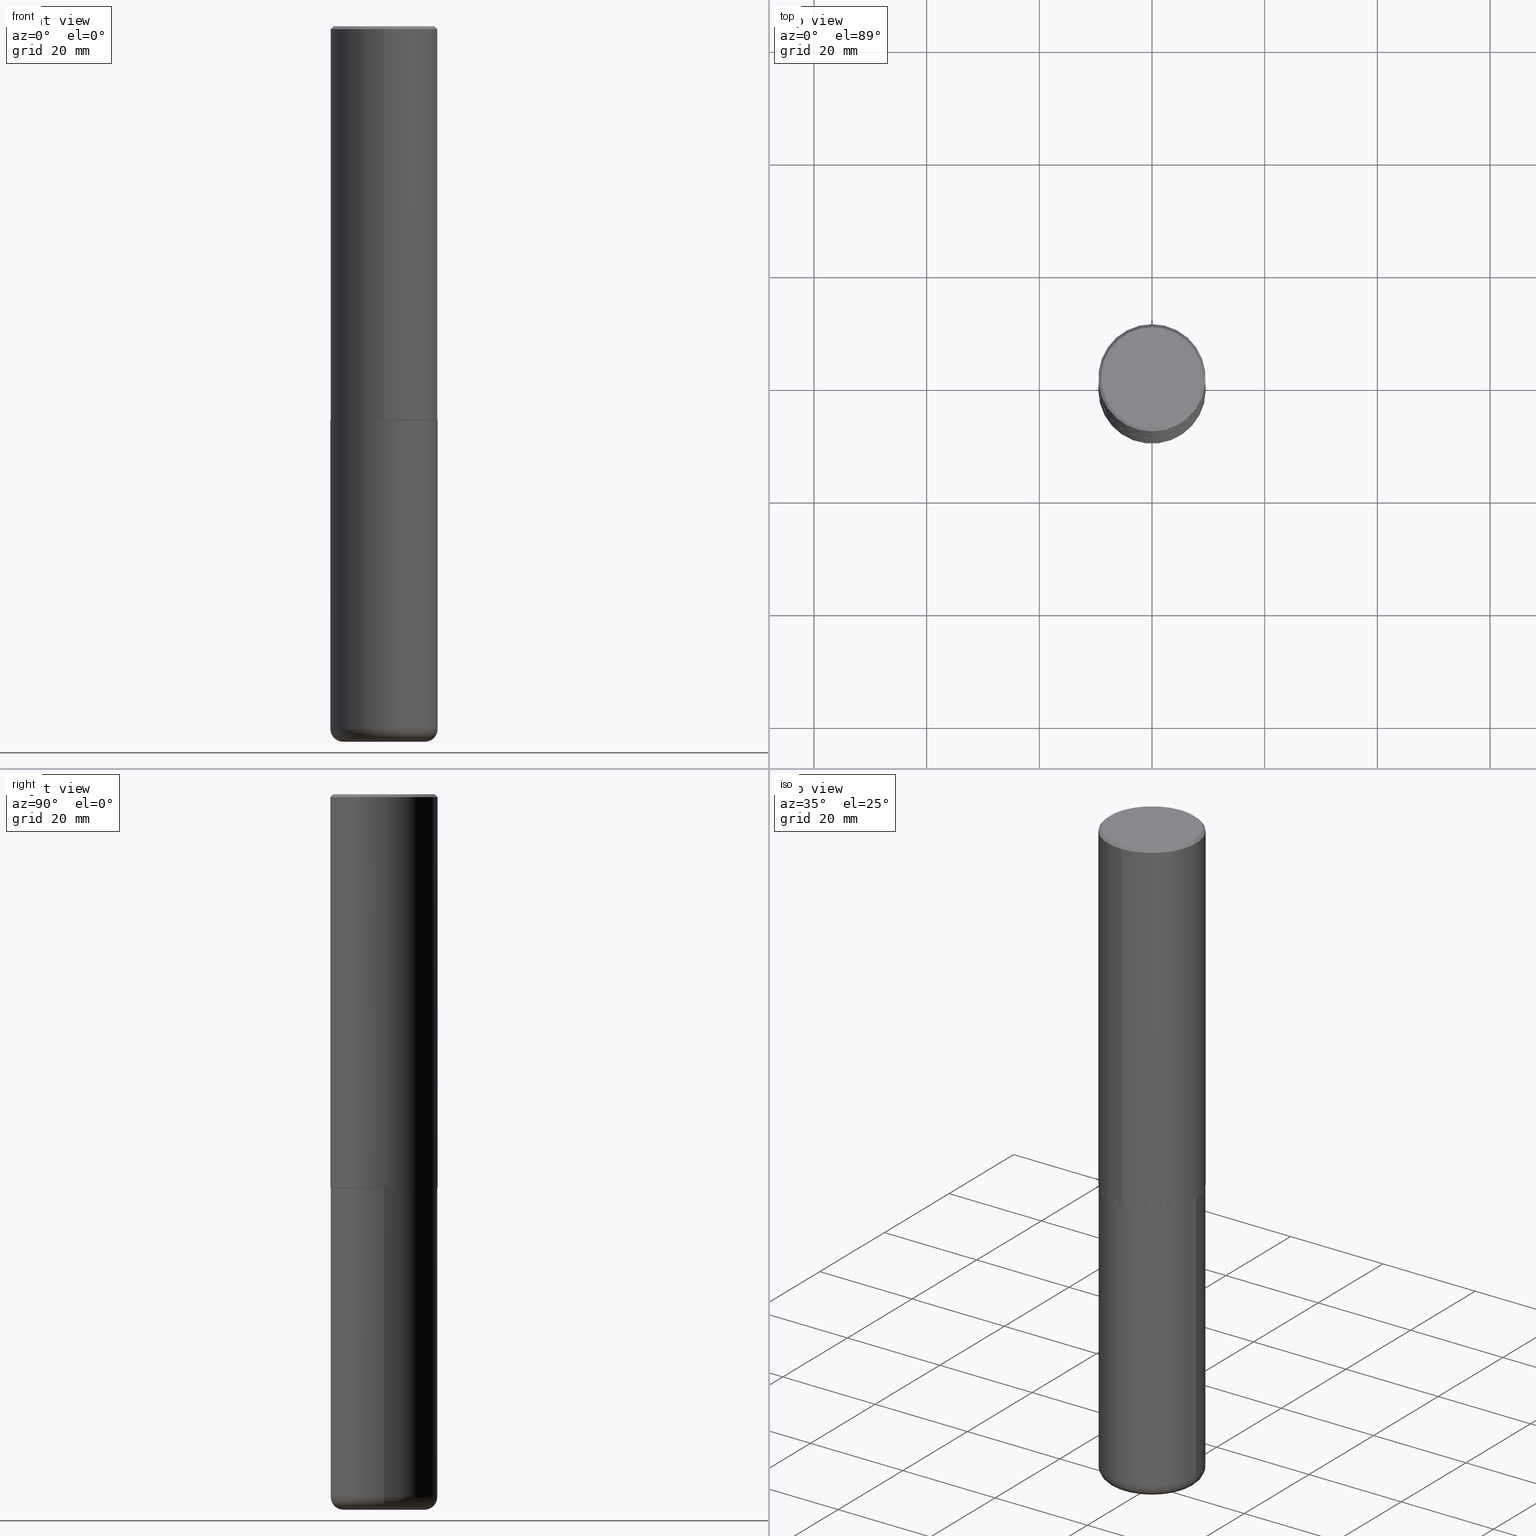
[diagram: canonical four-view strip — front | top / right | iso, engineering-drawing reading convention]
A machine part, canonical four-view strip (front | top / right | iso — engineering-drawing reading convention). The complete STEP part file that produces these views, byte-faithful:
ISO-10303-21;
HEADER;
FILE_DESCRIPTION (( 'STEP AP203' ),
    '1' );
FILE_NAME ('37659.STEP',
    '2024-03-02T07:17:27',
    ( '' ),
    ( '' ),
    'SwSTEP 2.0',
    'SolidWorks 2023',
    '' );
FILE_SCHEMA (( 'CONFIG_CONTROL_DESIGN' ));
ENDSEC;

DATA;
#1 = ORIENTED_EDGE ( 'NONE', *, *, #99, .F. ) ;
#2 = PERSON_AND_ORGANIZATION ( #376, #281 ) ;
#3 = VECTOR ( 'NONE', #256, 39.37007874015748143 ) ;
#4 = DATE_AND_TIME ( #245, #71 ) ;
#5 = EDGE_LOOP ( 'NONE', ( #367, #202, #193, #274 ) ) ;
#6 =( LENGTH_UNIT ( ) NAMED_UNIT ( * ) SI_UNIT ( $, .METRE. ) );
#7 = EDGE_LOOP ( 'NONE', ( #57, #90, #310, #207 ) ) ;
#8 = CARTESIAN_POINT ( 'NONE',  ( -0.3750000000000000555, -1.070783826866887333E-14, -2.750000000000000000 ) ) ;
#9 = DIRECTION ( 'NONE',  ( -2.445468806185136597E-29, 3.491481338843145583E-15, 1.000000000000000000 ) ) ;
#10 = DIRECTION ( 'NONE',  ( -6.982962677686266711E-15, -1.000000000000000000, 3.490662795793665951E-15 ) ) ;
#11 = AXIS2_PLACEMENT_3D ( 'NONE', #147, #110, #253 ) ;
#12 = PRODUCT_DEFINITION_SHAPE ( 'NONE', 'NONE',  #415 ) ;
#13 = DIRECTION ( 'NONE',  ( -2.446040391741596606E-29, 3.490662795793665557E-15, 1.000000000000000000 ) ) ;
#14 =( NAMED_UNIT ( * ) SI_UNIT ( $, .STERADIAN. ) SOLID_ANGLE_UNIT ( ) );
#15 = DIRECTION ( 'NONE',  ( -2.445468806185136597E-29, 3.491481338843145583E-15, 1.000000000000000000 ) ) ;
#16 = CIRCLE ( 'NONE', #349, 0.3549999999999999822 ) ;
#17 = CARTESIAN_POINT ( 'NONE',  ( 2.618611004132350411E-15, 0.3749999999999999445, -0.02000000000000139513 ) ) ;
#18 = ADVANCED_FACE ( 'NONE', ( #292 ), #116, .T. ) ;
#19 = LOCAL_TIME ( 2, 17, 27.00000000000000000, #46 ) ;
#20 = ADVANCED_FACE ( 'NONE', ( #385 ), #270, .T. ) ;
#21 = PLANE ( 'NONE',  #70 ) ;
#22 = DIRECTION ( 'NONE',  ( 2.438088387897960049E-29, -3.491481338843145188E-15, -1.000000000000000000 ) ) ;
#23 = ORIENTED_EDGE ( 'NONE', *, *, #266, .T. ) ;
#24 = ORIENTED_EDGE ( 'NONE', *, *, #124, .T. ) ;
#25 = FACE_OUTER_BOUND ( 'NONE', #205, .T. ) ;
#26 = CALENDAR_DATE ( 2024, 2, 3 ) ;
#27 = ORIENTED_EDGE ( 'NONE', *, *, #386, .F. ) ;
#28 = LINE ( 'NONE', #239, #114 ) ;
#29 = ORIENTED_EDGE ( 'NONE', *, *, #402, .T. ) ;
#30 = DIRECTION ( 'NONE',  ( -2.446040391741596606E-29, 3.490662795793665557E-15, 1.000000000000000000 ) ) ;
#31 = CONICAL_SURFACE ( 'NONE', #312, 0.3750000000000000555, 0.7853981633974465026 ) ;
#32 = PERSON_AND_ORGANIZATION ( #376, #281 ) ;
#33 = DIRECTION ( 'NONE',  ( -2.446040391741596606E-29, 3.490662795793665557E-15, 1.000000000000000000 ) ) ;
#34 = ORIENTED_EDGE ( 'NONE', *, *, #294, .F. ) ;
#35 = CARTESIAN_POINT ( 'NONE',  ( 6.726611077289389265E-29, -9.599322688432580971E-15, -2.750000000000000000 ) ) ;
#36 = PERSON_AND_ORGANIZATION_ROLE ( 'design_supplier' ) ;
#37 = ORIENTED_EDGE ( 'NONE', *, *, #124, .F. ) ;
#38 = ADVANCED_FACE ( 'NONE', ( #25 ), #31, .T. ) ;
#39 = PRODUCT_RELATED_PRODUCT_CATEGORY ( 'detail', '', ( #78 ) ) ;
#40 = LINE ( 'NONE', #248, #86 ) ;
#41 = AXIS2_PLACEMENT_3D ( 'NONE', #183, #115, #255 ) ;
#42 = AXIS2_PLACEMENT_3D ( 'NONE', #130, #175, #69 ) ;
#43 = DIRECTION ( 'NONE',  ( -6.982962677686265922E-15, -1.000000000000000000, 3.490662795793665557E-15 ) ) ;
#44 = CC_DESIGN_PERSON_AND_ORGANIZATION_ASSIGNMENT ( #32, #195, ( #258 ) ) ;
#45 = CARTESIAN_POINT ( 'NONE',  ( 1.222734403092568523E-28, -1.745740669421572989E-14, -5.000000000000000000 ) ) ;
#46 = COORDINATED_UNIVERSAL_TIME_OFFSET ( 5, 0, .BEHIND. ) ;
#47 = CIRCLE ( 'NONE', #302, 0.3750000000000000555 ) ;
#48 = CC_DESIGN_APPROVAL ( #321, ( #317 ) ) ;
#49 = DIRECTION ( 'NONE',  ( 2.446040391741596606E-29, -3.490662795793665557E-15, -1.000000000000000000 ) ) ;
#50 = ADVANCED_FACE ( 'NONE', ( #282 ), #416, .T. ) ;
#51 = DIRECTION ( 'NONE',  ( -4.851104656540954809E-15, -0.7071067811865486830, -0.7071067811865463515 ) ) ;
#52 = EDGE_CURVE ( 'NONE', #260, #225, #54, .T. ) ;
#53 = CARTESIAN_POINT ( 'NONE',  ( 6.726611077289389265E-29, -9.599322688432580971E-15, -2.750000000000000000 ) ) ;
#54 = CIRCLE ( 'NONE', #152, 0.2850000000000000311 ) ;
#55 = CIRCLE ( 'NONE', #291, 0.3749999999999999445 ) ;
#56 = EDGE_CURVE ( 'NONE', #396, #125, #47, .T. ) ;
#57 = ORIENTED_EDGE ( 'NONE', *, *, #348, .T. ) ;
#58 = DIRECTION ( 'NONE',  ( 2.438088387897960049E-29, -3.491481338843145188E-15, -1.000000000000000000 ) ) ;
#59 = LINE ( 'NONE', #158, #3 ) ;
#60 = ORIENTED_EDGE ( 'NONE', *, *, #293, .F. ) ;
#61 = CARTESIAN_POINT ( 'NONE',  ( 1.200725183836902132E-28, -1.714317337371984662E-14, -4.910000000000000142 ) ) ;
#62 = VECTOR ( 'NONE', #106, 39.37007874015748143 ) ;
#63 = CONICAL_SURFACE ( 'NONE', #87, 0.3739999999999999991, 0.7853981633977213939 ) ;
#64 = EDGE_LOOP ( 'NONE', ( #355, #393, #75, #1 ) ) ;
#65 = PERSON_AND_ORGANIZATION ( #376, #281 ) ;
#66 = ORIENTED_EDGE ( 'NONE', *, *, #99, .T. ) ;
#67 = CYLINDRICAL_SURFACE ( 'NONE', #354, 0.3749999999999999445 ) ;
#68 = EDGE_LOOP ( 'NONE', ( #129, #304 ) ) ;
#69 = DIRECTION ( 'NONE',  ( -6.982962677686266711E-15, -1.000000000000000000, 3.490662795793665951E-15 ) ) ;
#70 = AXIS2_PLACEMENT_3D ( 'NONE', #414, #226, #151 ) ;
#71 = LOCAL_TIME ( 2, 17, 27.00000000000000000, #389 ) ;
#72 = ORIENTED_EDGE ( 'NONE', *, *, #386, .T. ) ;
#73 = DIRECTION ( 'NONE',  ( -2.445468806185136597E-29, 3.491481338843145583E-15, 1.000000000000000000 ) ) ;
#74 = APPROVAL_ROLE ( '' ) ;
#75 = ORIENTED_EDGE ( 'NONE', *, *, #85, .T. ) ;
#76 = DIRECTION ( 'NONE',  ( -2.446040391741596606E-29, 3.490662795793665557E-15, 1.000000000000000000 ) ) ;
#77 = EDGE_CURVE ( 'NONE', #260, #403, #88, .T. ) ;
#78 = PRODUCT ( '37659', '37659', '', ( #179 ) ) ;
#79 = AXIS2_PLACEMENT_3D ( 'NONE', #276, #345, #43 ) ;
#80 = VECTOR ( 'NONE', #150, 39.37007874015748143 ) ;
#81 = DIRECTION ( 'NONE',  ( -6.982962677686265922E-15, -1.000000000000000000, 3.494488891895536035E-15 ) ) ;
#82 = DIRECTION ( 'NONE',  ( 7.105427357601001859E-15, 1.000000000000000000, -3.491481338843145583E-15 ) ) ;
#83 = DIRECTION ( 'NONE',  ( 4.937700262164538576E-15, 0.7071067811865437980, -0.7071067811865512365 ) ) ;
#84 = CARTESIAN_POINT ( 'NONE',  ( 1.200725183836902132E-28, -1.714317337371984662E-14, -4.910000000000000142 ) ) ;
#85 = EDGE_CURVE ( 'NONE', #225, #98, #328, .T. ) ;
#86 = VECTOR ( 'NONE', #174, 39.37007874015748143 ) ;
#87 = AXIS2_PLACEMENT_3D ( 'NONE', #35, #30, #359 ) ;
#88 = CIRCLE ( 'NONE', #257, 0.08999999999999992728 ) ;
#89 = CIRCLE ( 'NONE', #343, 0.3750000000000000555 ) ;
#90 = ORIENTED_EDGE ( 'NONE', *, *, #133, .T. ) ;
#91 = CARTESIAN_POINT ( 'NONE',  ( 2.478951750578624209E-15, 0.3549999999999999822, -1.215853765202481601E-15 ) ) ;
#92 = EDGE_CURVE ( 'NONE', #140, #190, #374, .T. ) ;
#93 = DIRECTION ( 'NONE',  ( -4.937700262165896205E-15, -0.7071067811867381980, 0.7071067811863568364 ) ) ;
#94 = AXIS2_PLACEMENT_3D ( 'NONE', #342, #76, #10 ) ;
#95 = VERTEX_POINT ( 'NONE', #377 ) ;
#96 = FACE_OUTER_BOUND ( 'NONE', #5, .T. ) ;
#97 = COORDINATED_UNIVERSAL_TIME_OFFSET ( 5, 0, .BEHIND. ) ;
#98 = VERTEX_POINT ( 'NONE', #178 ) ;
#99 = EDGE_CURVE ( 'NONE', #403, #98, #228, .T. ) ;
#100 = DATE_TIME_ROLE ( 'creation_date' ) ;
#101 = VERTEX_POINT ( 'NONE', #139 ) ;
#102 = CARTESIAN_POINT ( 'NONE',  ( 6.726611077289389265E-29, -9.599322688432580971E-15, -2.750000000000000000 ) ) ;
#103 = ORIENTED_EDGE ( 'NONE', *, *, #153, .F. ) ;
#104 = CALENDAR_DATE ( 2024, 2, 3 ) ;
#105 = EDGE_LOOP ( 'NONE', ( #122, #23, #219, #60 ) ) ;
#106 = DIRECTION ( 'NONE',  ( -2.446040391741596606E-29, 3.490662795793665557E-15, 1.000000000000000000 ) ) ;
#107 = CARTESIAN_POINT ( 'NONE',  ( 4.892080783483214581E-31, -6.981325591587361238E-17, -0.02000000000000008715 ) ) ;
#108 = MANIFOLD_SOLID_BREP ( 'Body-Move/Copy2[2]', #280 ) ;
#109 = DIRECTION ( 'NONE',  ( -6.982962677686266711E-15, -1.000000000000000000, 3.491481338843145583E-15 ) ) ;
#110 = DIRECTION ( 'NONE',  ( -2.445468806185136597E-29, 3.491481338843145583E-15, 1.000000000000000000 ) ) ;
#111 = CARTESIAN_POINT ( 'NONE',  ( 1.200725183836902132E-28, -1.714317337371984662E-14, -4.910000000000000142 ) ) ;
#112 = CC_DESIGN_PERSON_AND_ORGANIZATION_ASSIGNMENT ( #309, #36, ( #258 ) ) ;
#113 = CIRCLE ( 'NONE', #41, 0.3739999999999999991 ) ;
#114 = VECTOR ( 'NONE', #93, 39.37007874015748143 ) ;
#115 = DIRECTION ( 'NONE',  ( -2.446040391741596606E-29, 3.490662795793665557E-15, 1.000000000000000000 ) ) ;
#116 = PLANE ( 'NONE',  #186 ) ;
#117 = APPROVAL ( #217, 'UNSPECIFIED' ) ;
#118 = FACE_OUTER_BOUND ( 'NONE', #301, .T. ) ;
#119 = AXIS2_PLACEMENT_3D ( 'NONE', #91, #146, #412 ) ;
#120 = LOCAL_TIME ( 2, 17, 27.00000000000000000, #230 ) ;
#121 = DIRECTION ( 'NONE',  ( -1.000000000000000000, 6.982962677686265922E-15, -4.876176775795935793E-29 ) ) ;
#122 = ORIENTED_EDGE ( 'NONE', *, *, #131, .F. ) ;
#123 = UNCERTAINTY_MEASURE_WITH_UNIT (LENGTH_MEASURE( 1.000000000000000082E-05 ), #206, 'distance_accuracy_value', 'NONE');
#124 = EDGE_CURVE ( 'NONE', #403, #396, #368, .T. ) ;
#125 = VERTEX_POINT ( 'NONE', #401 ) ;
#126 = CARTESIAN_POINT ( 'NONE',  ( -2.618611004132284935E-15, -0.3750000000000099920, -2.748999999999999222 ) ) ;
#127 = DIRECTION ( 'NONE',  ( -2.445468806185136597E-29, 3.491481338843145583E-15, 1.000000000000000000 ) ) ;
#128 = DATE_TIME_ROLE ( 'classification_date' ) ;
#129 = ORIENTED_EDGE ( 'NONE', *, *, #216, .F. ) ;
#130 = CARTESIAN_POINT ( 'NONE',  ( 0.000000000000000000, 0.000000000000000000, 0.000000000000000000 ) ) ;
#131 = EDGE_CURVE ( 'NONE', #265, #190, #277, .T. ) ;
#132 = ORIENTED_EDGE ( 'NONE', *, *, #406, .F. ) ;
#133 = EDGE_CURVE ( 'NONE', #95, #265, #40, .T. ) ;
#134 = CARTESIAN_POINT ( 'NONE',  ( 2.664535259100411196E-15, 0.3749999999999907296, -2.749000000000000998 ) ) ;
#135 = ORIENTED_EDGE ( 'NONE', *, *, #173, .T. ) ;
#136 = DIRECTION ( 'NONE',  ( 1.000000000000000000, -6.982962677686266711E-15, 4.876176775795935793E-29 ) ) ;
#137 = APPLICATION_CONTEXT ( 'configuration controlled 3d designs of mechanical parts and assemblies' ) ;
#138 = CIRCLE ( 'NONE', #383, 0.3750000000000000555 ) ;
#139 = CARTESIAN_POINT ( 'NONE',  ( -2.572686749164323547E-15, -0.3750000000000001110, -0.01999999999999877570 ) ) ;
#140 = VERTEX_POINT ( 'NONE', #373 ) ;
#141 = DIRECTION ( 'NONE',  ( -2.445468806185136597E-29, 3.491481338843145583E-15, 1.000000000000000000 ) ) ;
#142 = DIRECTION ( 'NONE',  ( -6.982962677686265922E-15, -1.000000000000000000, 3.494488891895536035E-15 ) ) ;
#143 = DIRECTION ( 'NONE',  ( -2.445468806185136877E-29, 3.491481338843145188E-15, 1.000000000000000000 ) ) ;
#144 = PERSON_AND_ORGANIZATION ( #376, #281 ) ;
#145 = CIRCLE ( 'NONE', #163, 0.3739999999999999991 ) ;
#146 = DIRECTION ( 'NONE',  ( 2.446040391741596045E-29, -3.490662795793665557E-15, -1.000000000000000000 ) ) ;
#147 = CARTESIAN_POINT ( 'NONE',  ( 1.222734403092568523E-28, -1.745740669421572989E-14, -5.000000000000000000 ) ) ;
#148 = AXIS2_PLACEMENT_3D ( 'NONE', #53, #184, #323 ) ;
#149 = EDGE_LOOP ( 'NONE', ( #340, #160, #391, #171 ) ) ;
#150 = DIRECTION ( 'NONE',  ( -2.446040391741596606E-29, 3.490662795793665557E-15, 1.000000000000000000 ) ) ;
#151 = DIRECTION ( 'NONE',  ( -6.982962677686265922E-15, -1.000000000000000000, 3.490662795793665557E-15 ) ) ;
#152 = AXIS2_PLACEMENT_3D ( 'NONE', #45, #308, #181 ) ;
#153 = EDGE_CURVE ( 'NONE', #101, #190, #138, .T. ) ;
#154 = DATE_AND_TIME ( #285, #19 ) ;
#155 = DIRECTION ( 'NONE',  ( 1.000000000000000000, -6.982962677686269077E-15, 4.883557194083113462E-29 ) ) ;
#156 = DATE_AND_TIME ( #104, #417 ) ;
#157 = EDGE_LOOP ( 'NONE', ( #287, #24, #27, #196 ) ) ;
#158 = CARTESIAN_POINT ( 'NONE',  ( 0.3749999999999999445, -2.618611004132349622E-15, 1.828566290923475642E-29 ) ) ;
#159 = PERSON_AND_ORGANIZATION_ROLE ( 'classification_officer' ) ;
#160 = ORIENTED_EDGE ( 'NONE', *, *, #201, .T. ) ;
#161 = DIRECTION ( 'NONE',  ( 1.000000000000000000, -6.982962677686266711E-15, 4.876176775795935793E-29 ) ) ;
#162 = CARTESIAN_POINT ( 'NONE',  ( 6.724165036897648492E-29, -9.595832025636787455E-15, -2.749000000000000110 ) ) ;
#163 = AXIS2_PLACEMENT_3D ( 'NONE', #102, #311, #332 ) ;
#164 = ORIENTED_EDGE ( 'NONE', *, *, #85, .F. ) ;
#165 = CARTESIAN_POINT ( 'NONE',  ( -0.3749999999999999445, -1.447863811461947092E-14, -4.910000000000000142 ) ) ;
#166 = CC_DESIGN_DATE_AND_TIME_ASSIGNMENT ( #198, #128, ( #317 ) ) ;
#167 = DIRECTION ( 'NONE',  ( -2.446040391741596606E-29, 3.490662795793665557E-15, 1.000000000000000000 ) ) ;
#168 = APPROVAL_STATUS ( 'not_yet_approved' ) ;
#169 = ORIENTED_EDGE ( 'NONE', *, *, #216, .T. ) ;
#170 = CYLINDRICAL_SURFACE ( 'NONE', #94, 0.3750000000000002220 ) ;
#171 = ORIENTED_EDGE ( 'NONE', *, *, #92, .F. ) ;
#172 = DIRECTION ( 'NONE',  ( 1.000000000000000000, -6.982962677686269077E-15, 0.000000000000000000 ) ) ;
#173 = EDGE_CURVE ( 'NONE', #189, #140, #290, .T. ) ;
#174 = DIRECTION ( 'NONE',  ( 5.024295867789434219E-15, 0.7071067811867430830, 0.7071067811863519514 ) ) ;
#175 = DIRECTION ( 'NONE',  ( -2.446040391741596606E-29, 3.490662795793665557E-15, 1.000000000000000000 ) ) ;
#176 = DIRECTION ( 'NONE',  ( 1.000000000000000000, -6.982962677686269077E-15, 4.883557194083113462E-29 ) ) ;
#177 = APPROVAL ( #303, 'UNSPECIFIED' ) ;
#178 = CARTESIAN_POINT ( 'NONE',  ( 0.3749999999999999445, -1.976178437785219664E-14, -4.910000000000000142 ) ) ;
#179 = MECHANICAL_CONTEXT ( 'NONE', #320, 'mechanical' ) ;
#180 = ADVANCED_FACE ( 'NONE', ( #382 ), #288, .F. ) ;
#181 = DIRECTION ( 'NONE',  ( 1.000000000000000000, -6.982962677686266711E-15, 0.000000000000000000 ) ) ;
#182 = APPROVAL_PERSON_ORGANIZATION ( #2, #177, #366 ) ;
#183 = CARTESIAN_POINT ( 'NONE',  ( 6.726611077289389265E-29, -9.599322688432580971E-15, -2.750000000000000000 ) ) ;
#184 = DIRECTION ( 'NONE',  ( -2.446040391741596606E-29, 3.490662795793665557E-15, 1.000000000000000000 ) ) ;
#185 = ADVANCED_BREP_SHAPE_REPRESENTATION ( '37659', ( #405, #108, #240 ), #390 ) ;
#186 = AXIS2_PLACEMENT_3D ( 'NONE', #326, #22, #297 ) ;
#187 = CC_DESIGN_PERSON_AND_ORGANIZATION_ASSIGNMENT ( #144, #283, ( #78 ) ) ;
#188 = CARTESIAN_POINT ( 'NONE',  ( -2.572686749164323547E-15, -0.3750000000000001110, -0.01999999999999877570 ) ) ;
#189 = VERTEX_POINT ( 'NONE', #224 ) ;
#190 = VERTEX_POINT ( 'NONE', #17 ) ;
#191 = ADVANCED_FACE ( 'NONE', ( #322 ), #21, .F. ) ;
#192 = CARTESIAN_POINT ( 'NONE',  ( 4.892080783483214581E-31, -6.981325591587361238E-17, -0.02000000000000008715 ) ) ;
#193 = ORIENTED_EDGE ( 'NONE', *, *, #279, .T. ) ;
#194 = CIRCLE ( 'NONE', #11, 0.2850000000000000311 ) ;
#195 = PERSON_AND_ORGANIZATION_ROLE ( 'creator' ) ;
#196 = ORIENTED_EDGE ( 'NONE', *, *, #319, .F. ) ;
#197 = CARTESIAN_POINT ( 'NONE',  ( -2.618611004132351594E-15, -0.3750000000000002220, 1.308998548422625521E-15 ) ) ;
#198 = DATE_AND_TIME ( #26, #120 ) ;
#199 = EDGE_LOOP ( 'NONE', ( #72, #268 ) ) ;
#200 = CARTESIAN_POINT ( 'NONE',  ( -1.141397163745304909E-45, 1.628849886601155835E-31, 4.666305460853910467E-17 ) ) ;
#201 = EDGE_CURVE ( 'NONE', #189, #101, #227, .T. ) ;
#202 = ORIENTED_EDGE ( 'NONE', *, *, #242, .T. ) ;
#203 = DIRECTION ( 'NONE',  ( -2.446040391741596606E-29, 3.490662795793665557E-15, 1.000000000000000000 ) ) ;
#204 = CIRCLE ( 'NONE', #325, 0.3750000000000003886 ) ;
#205 = EDGE_LOOP ( 'NONE', ( #243, #327, #331, #362 ) ) ;
#206 =( CONVERSION_BASED_UNIT ( 'INCH', #237 ) LENGTH_UNIT ( ) NAMED_UNIT ( #360 ) );
#207 = ORIENTED_EDGE ( 'NONE', *, *, #279, .F. ) ;
#208 = DIRECTION ( 'NONE',  ( -6.982962677686265922E-15, -1.000000000000000000, 2.913971193241877611E-15 ) ) ;
#209 = ADVANCED_FACE ( 'NONE', ( #118 ), #259, .F. ) ;
#210 = DIRECTION ( 'NONE',  ( -1.000000000000000000, 7.105427357600996337E-15, 0.000000000000000000 ) ) ;
#211 = FACE_OUTER_BOUND ( 'NONE', #105, .T. ) ;
#212 = AXIS2_PLACEMENT_3D ( 'NONE', #107, #213, #344 ) ;
#213 = DIRECTION ( 'NONE',  ( 2.446040391741596606E-29, -3.490662795793665557E-15, -1.000000000000000000 ) ) ;
#214 = LINE ( 'NONE', #197, #80 ) ;
#215 = CARTESIAN_POINT ( 'NONE',  ( 4.892080783483214581E-31, -6.981325591587361238E-17, -0.02000000000000008715 ) ) ;
#216 = EDGE_CURVE ( 'NONE', #225, #260, #194, .T. ) ;
#217 = APPROVAL_STATUS ( 'not_yet_approved' ) ;
#218 = DIRECTION ( 'NONE',  ( 1.000000000000000000, -6.982962677686269077E-15, 0.000000000000000000 ) ) ;
#219 = ORIENTED_EDGE ( 'NONE', *, *, #294, .T. ) ;
#220 = CC_DESIGN_APPROVAL ( #177, ( #258 ) ) ;
#221 = CARTESIAN_POINT ( 'NONE',  ( -2.611628041454596160E-15, -0.3740000000000096581, -2.749999999999998668 ) ) ;
#222 = ORIENTED_EDGE ( 'NONE', *, *, #56, .F. ) ;
#223 = VERTEX_POINT ( 'NONE', #221 ) ;
#224 = CARTESIAN_POINT ( 'NONE',  ( -2.504081769186608216E-15, -0.3549999999999999822, 1.285848347115290366E-15 ) ) ;
#225 = VERTEX_POINT ( 'NONE', #351 ) ;
#226 = DIRECTION ( 'NONE',  ( -2.446040391741596045E-29, 3.490662795793665557E-15, 1.000000000000000000 ) ) ;
#227 = LINE ( 'NONE', #188, #316 ) ;
#228 = CIRCLE ( 'NONE', #356, 0.3749999999999999445 ) ;
#229 = CIRCLE ( 'NONE', #371, 0.3750000000000000555 ) ;
#230 = COORDINATED_UNIVERSAL_TIME_OFFSET ( 5, 0, .BEHIND. ) ;
#231 = ORIENTED_EDGE ( 'NONE', *, *, #77, .T. ) ;
#232 = CARTESIAN_POINT ( 'NONE',  ( 1.200725183836902132E-28, -1.714317337371984662E-14, -4.910000000000000142 ) ) ;
#233 = ORIENTED_EDGE ( 'NONE', *, *, #319, .T. ) ;
#234 = FACE_OUTER_BOUND ( 'NONE', #157, .T. ) ;
#235 = PERSON_AND_ORGANIZATION ( #376, #281 ) ;
#236 = EDGE_LOOP ( 'NONE', ( #37, #66, #233, #222 ) ) ;
#237 = LENGTH_MEASURE_WITH_UNIT ( LENGTH_MEASURE( 0.02539999999999999897 ), #6 );
#238 = DESIGN_CONTEXT ( 'detailed design', #137, 'design' ) ;
#239 = CARTESIAN_POINT ( 'NONE',  ( -2.611628041454596160E-15, -0.3740000000000096581, -2.749999999999998668 ) ) ;
#240 = AXIS2_PLACEMENT_3D ( 'NONE', #315, #407, #252 ) ;
#241 = DATE_AND_TIME ( #267, #380 ) ;
#242 = EDGE_CURVE ( 'NONE', #95, #223, #113, .T. ) ;
#243 = ORIENTED_EDGE ( 'NONE', *, *, #201, .F. ) ;
#244 = CYLINDRICAL_SURFACE ( 'NONE', #271, 0.3749999999999999445 ) ;
#245 = CALENDAR_DATE ( 2024, 2, 3 ) ;
#246 =( NAMED_UNIT ( * ) PLANE_ANGLE_UNIT ( ) SI_UNIT ( $, .RADIAN. ) );
#247 = CONICAL_SURFACE ( 'NONE', #148, 0.3739999999999999991, 0.7853981633977213939 ) ;
#248 = CARTESIAN_POINT ( 'NONE',  ( 2.657429831742841742E-15, 0.3739999999999903957, -2.750000000000000888 ) ) ;
#249 = CARTESIAN_POINT ( 'NONE',  ( 6.725039217009124520E-29, -9.601573681818649859E-15, -2.750000000000000000 ) ) ;
#250 = PERSON_AND_ORGANIZATION ( #376, #281 ) ;
#251 = CARTESIAN_POINT ( 'NONE',  ( 2.618611004132350411E-15, 0.3749999999999999445, -0.02000000000000139513 ) ) ;
#252 = DIRECTION ( 'NONE',  ( 1.000000000000000000, 0.000000000000000000, 0.000000000000000000 ) ) ;
#253 = DIRECTION ( 'NONE',  ( 1.000000000000000000, -6.982962677686266711E-15, 0.000000000000000000 ) ) ;
#254 = CIRCLE ( 'NONE', #408, 0.3750000000000003886 ) ;
#255 = DIRECTION ( 'NONE',  ( -6.982962677686266711E-15, -1.000000000000000000, 2.921762560068730595E-15 ) ) ;
#256 = DIRECTION ( 'NONE',  ( -2.445468806185136877E-29, 3.491481338843145188E-15, 1.000000000000000000 ) ) ;
#257 = AXIS2_PLACEMENT_3D ( 'NONE', #346, #82, #210 ) ;
#258 = PRODUCT_DEFINITION_FORMATION_WITH_SPECIFIED_SOURCE ( 'ANY', '', #78, .NOT_KNOWN. ) ;
#259 = PLANE ( 'NONE',  #119 ) ;
#260 = VERTEX_POINT ( 'NONE', #381 ) ;
#261 = DIRECTION ( 'NONE',  ( 1.000000000000000000, -6.982962677686266711E-15, 0.000000000000000000 ) ) ;
#262 = SHAPE_DEFINITION_REPRESENTATION ( #12, #185 ) ;
#263 = EDGE_LOOP ( 'NONE', ( #300, #336, #103, #34 ) ) ;
#264 = ADVANCED_FACE ( 'NONE', ( #352 ), #247, .T. ) ;
#265 = VERTEX_POINT ( 'NONE', #134 ) ;
#266 = EDGE_CURVE ( 'NONE', #265, #330, #254, .T. ) ;
#267 = CALENDAR_DATE ( 2024, 2, 3 ) ;
#268 = ORIENTED_EDGE ( 'NONE', *, *, #56, .T. ) ;
#269 = FACE_OUTER_BOUND ( 'NONE', #263, .T. ) ;
#270 = TOROIDAL_SURFACE ( 'NONE', #324, 0.2850000000000000311, 0.08999999999999989952 ) ;
#271 = AXIS2_PLACEMENT_3D ( 'NONE', #337, #73, #136 ) ;
#272 = CC_DESIGN_PERSON_AND_ORGANIZATION_ASSIGNMENT ( #306, #159, ( #317 ) ) ;
#273 = CARTESIAN_POINT ( 'NONE',  ( -0.3749999999999999445, 2.664535259100375303E-15, -1.844600658845589318E-29 ) ) ;
#274 = ORIENTED_EDGE ( 'NONE', *, *, #266, .F. ) ;
#275 = DIRECTION ( 'NONE',  ( -6.982962677686265922E-15, -1.000000000000000000, 3.490662795793665557E-15 ) ) ;
#276 = CARTESIAN_POINT ( 'NONE',  ( -1.141397163745304909E-45, 1.628849886601155835E-31, 4.666305460853910467E-17 ) ) ;
#277 = LINE ( 'NONE', #341, #62 ) ;
#278 = APPLICATION_PROTOCOL_DEFINITION ( 'international standard', 'config_control_design', 1994, #320 ) ;
#279 = EDGE_CURVE ( 'NONE', #223, #330, #28, .T. ) ;
#280 = CLOSED_SHELL ( 'NONE', ( #264, #361, #50, #38, #375, #369, #191, #209 ) ) ;
#281 = ORGANIZATION ( 'UNSPECIFIED', 'UNSPECIFIED', '' ) ;
#282 = FACE_OUTER_BOUND ( 'NONE', #149, .T. ) ;
#283 = PERSON_AND_ORGANIZATION_ROLE ( 'design_owner' ) ;
#284 = CARTESIAN_POINT ( 'NONE',  ( 4.892080783483214581E-31, -6.981325591587361238E-17, -0.02000000000000008715 ) ) ;
#285 = CALENDAR_DATE ( 2024, 2, 3 ) ;
#286 = ADVANCED_FACE ( 'NONE', ( #387 ), #357, .T. ) ;
#287 = ORIENTED_EDGE ( 'NONE', *, *, #406, .T. ) ;
#288 = PLANE ( 'NONE',  #379 ) ;
#289 = VECTOR ( 'NONE', #83, 39.37007874015748143 ) ;
#290 = CIRCLE ( 'NONE', #79, 0.3549999999999999822 ) ;
#291 = AXIS2_PLACEMENT_3D ( 'NONE', #232, #305, #172 ) ;
#292 = FACE_OUTER_BOUND ( 'NONE', #68, .T. ) ;
#293 = EDGE_CURVE ( 'NONE', #190, #101, #89, .T. ) ;
#294 = EDGE_CURVE ( 'NONE', #330, #101, #214, .T. ) ;
#295 = CARTESIAN_POINT ( 'NONE',  ( 6.725039217009124520E-29, -9.601573681818649859E-15, -2.750000000000000000 ) ) ;
#296 = CC_DESIGN_SECURITY_CLASSIFICATION ( #317, ( #258 ) ) ;
#297 = DIRECTION ( 'NONE',  ( -1.000000000000000000, 6.982962677686265922E-15, -4.876176775795935793E-29 ) ) ;
#298 = DIRECTION ( 'NONE',  ( -6.982962677686265922E-15, -1.000000000000000000, 2.913971193241877611E-15 ) ) ;
#299 = SECURITY_CLASSIFICATION_LEVEL ( 'unclassified' ) ;
#300 = ORIENTED_EDGE ( 'NONE', *, *, #378, .T. ) ;
#301 = EDGE_LOOP ( 'NONE', ( #29, #135 ) ) ;
#302 = AXIS2_PLACEMENT_3D ( 'NONE', #249, #9, #313 ) ;
#303 = APPROVAL_STATUS ( 'not_yet_approved' ) ;
#304 = ORIENTED_EDGE ( 'NONE', *, *, #52, .F. ) ;
#305 = DIRECTION ( 'NONE',  ( -2.445468806185136597E-29, 3.491481338843145583E-15, 1.000000000000000000 ) ) ;
#306 = PERSON_AND_ORGANIZATION ( #376, #281 ) ;
#307 = ORIENTED_EDGE ( 'NONE', *, *, #348, .F. ) ;
#308 = DIRECTION ( 'NONE',  ( -2.445468806185136597E-29, 3.491481338843145583E-15, 1.000000000000000000 ) ) ;
#309 = PERSON_AND_ORGANIZATION ( #376, #281 ) ;
#310 = ORIENTED_EDGE ( 'NONE', *, *, #378, .F. ) ;
#311 = DIRECTION ( 'NONE',  ( -2.446040391741596606E-29, 3.490662795793665557E-15, 1.000000000000000000 ) ) ;
#312 = AXIS2_PLACEMENT_3D ( 'NONE', #284, #49, #350 ) ;
#313 = DIRECTION ( 'NONE',  ( 1.000000000000000000, -6.982962677686266711E-15, 0.000000000000000000 ) ) ;
#314 = CARTESIAN_POINT ( 'NONE',  ( 6.725039217009124520E-29, -9.601573681818649859E-15, -2.750000000000000000 ) ) ;
#315 = CARTESIAN_POINT ( 'NONE',  ( 0.000000000000000000, 0.000000000000000000, 0.000000000000000000 ) ) ;
#316 = VECTOR ( 'NONE', #51, 39.37007874015748143 ) ;
#317 = SECURITY_CLASSIFICATION ( '', '', #299 ) ;
#318 = DIRECTION ( 'NONE',  ( 1.000000000000000000, -6.982962677686273810E-15, 0.000000000000000000 ) ) ;
#319 = EDGE_CURVE ( 'NONE', #98, #125, #59, .T. ) ;
#320 = APPLICATION_CONTEXT ( 'configuration controlled 3d designs of mechanical parts and assemblies' ) ;
#321 = APPROVAL ( #168, 'UNSPECIFIED' ) ;
#322 = FACE_OUTER_BOUND ( 'NONE', #398, .T. ) ;
#323 = DIRECTION ( 'NONE',  ( -6.982962677686266711E-15, -1.000000000000000000, 2.921762560068730595E-15 ) ) ;
#324 = AXIS2_PLACEMENT_3D ( 'NONE', #111, #127, #155 ) ;
#325 = AXIS2_PLACEMENT_3D ( 'NONE', #392, #33, #208 ) ;
#326 = CARTESIAN_POINT ( 'NONE',  ( 1.222734403092568523E-28, -1.745740669421572989E-14, -5.000000000000000000 ) ) ;
#327 = ORIENTED_EDGE ( 'NONE', *, *, #402, .F. ) ;
#328 = CIRCLE ( 'NONE', #388, 0.08999999999999992728 ) ;
#329 = APPROVAL_DATE_TIME ( #156, #321 ) ;
#330 = VERTEX_POINT ( 'NONE', #126 ) ;
#331 = ORIENTED_EDGE ( 'NONE', *, *, #92, .T. ) ;
#332 = DIRECTION ( 'NONE',  ( -6.982962677686266711E-15, -1.000000000000000000, 2.921762560068730595E-15 ) ) ;
#333 = VECTOR ( 'NONE', #143, 39.37007874015748143 ) ;
#334 = APPROVAL_PERSON_ORGANIZATION ( #250, #117, #347 ) ;
#335 = COORDINATED_UNIVERSAL_TIME_OFFSET ( 5, 0, .BEHIND. ) ;
#336 = ORIENTED_EDGE ( 'NONE', *, *, #131, .T. ) ;
#337 = CARTESIAN_POINT ( 'NONE',  ( 0.000000000000000000, 0.000000000000000000, 0.000000000000000000 ) ) ;
#338 = ADVANCED_FACE ( 'NONE', ( #234 ), #244, .T. ) ;
#339 = PERSON_AND_ORGANIZATION_ROLE ( 'creator' ) ;
#340 = ORIENTED_EDGE ( 'NONE', *, *, #173, .F. ) ;
#341 = CARTESIAN_POINT ( 'NONE',  ( 2.664535259100376880E-15, 0.3750000000000002220, -1.308998548422625521E-15 ) ) ;
#342 = CARTESIAN_POINT ( 'NONE',  ( 0.000000000000000000, 0.000000000000000000, 0.000000000000000000 ) ) ;
#343 = AXIS2_PLACEMENT_3D ( 'NONE', #192, #372, #81 ) ;
#344 = DIRECTION ( 'NONE',  ( 6.982962677686265922E-15, 1.000000000000000000, -3.494488891895536035E-15 ) ) ;
#345 = DIRECTION ( 'NONE',  ( -2.446040391741596606E-29, 3.490662795793665557E-15, 1.000000000000000000 ) ) ;
#346 = CARTESIAN_POINT ( 'NONE',  ( -0.2850000000000000311, -1.511812657680356008E-14, -4.910000000000000142 ) ) ;
#347 = APPROVAL_ROLE ( '' ) ;
#348 = EDGE_CURVE ( 'NONE', #223, #95, #145, .T. ) ;
#349 = AXIS2_PLACEMENT_3D ( 'NONE', #200, #203, #275 ) ;
#350 = DIRECTION ( 'NONE',  ( 6.982962677686265922E-15, 1.000000000000000000, -3.494488891895536035E-15 ) ) ;
#351 = CARTESIAN_POINT ( 'NONE',  ( 0.2850000000000000311, -1.944755105735631653E-14, -5.000000000000000000 ) ) ;
#352 = FACE_OUTER_BOUND ( 'NONE', #7, .T. ) ;
#353 = APPROVAL_DATE_TIME ( #154, #117 ) ;
#354 = AXIS2_PLACEMENT_3D ( 'NONE', #399, #397, #161 ) ;
#355 = ORIENTED_EDGE ( 'NONE', *, *, #77, .F. ) ;
#356 = AXIS2_PLACEMENT_3D ( 'NONE', #84, #15, #218 ) ;
#357 = TOROIDAL_SURFACE ( 'NONE', #413, 0.2850000000000000311, 0.08999999999999989952 ) ;
#358 = ORIENTED_EDGE ( 'NONE', *, *, #242, .F. ) ;
#359 = DIRECTION ( 'NONE',  ( -6.982962677686266711E-15, -1.000000000000000000, 2.921762560068730595E-15 ) ) ;
#360 = DIMENSIONAL_EXPONENTS ( 1.000000000000000000, 0.000000000000000000, 0.000000000000000000, 0.000000000000000000, 0.000000000000000000, 0.000000000000000000, 0.000000000000000000 ) ;
#361 = ADVANCED_FACE ( 'NONE', ( #269 ), #170, .T. ) ;
#362 = ORIENTED_EDGE ( 'NONE', *, *, #293, .T. ) ;
#363 = CYLINDRICAL_SURFACE ( 'NONE', #42, 0.3750000000000002220 ) ;
#364 = EDGE_LOOP ( 'NONE', ( #169, #231, #132, #164 ) ) ;
#365 = APPROVAL_PERSON_ORGANIZATION ( #235, #321, #74 ) ;
#366 = APPROVAL_ROLE ( '' ) ;
#367 = ORIENTED_EDGE ( 'NONE', *, *, #133, .F. ) ;
#368 = LINE ( 'NONE', #273, #333 ) ;
#369 = ADVANCED_FACE ( 'NONE', ( #96 ), #63, .T. ) ;
#370 = DIRECTION ( 'NONE',  ( -2.445468806185136597E-29, 3.491481338843145583E-15, 1.000000000000000000 ) ) ;
#371 = AXIS2_PLACEMENT_3D ( 'NONE', #314, #141, #261 ) ;
#372 = DIRECTION ( 'NONE',  ( -2.446040391741596606E-29, 3.490662795793665557E-15, 1.000000000000000000 ) ) ;
#373 = CARTESIAN_POINT ( 'NONE',  ( 2.548781377355487113E-15, 0.3549999999999999822, -1.192522237898212341E-15 ) ) ;
#374 = LINE ( 'NONE', #251, #289 ) ;
#375 = ADVANCED_FACE ( 'NONE', ( #211 ), #363, .T. ) ;
#376 = PERSON ( 'UNSPECIFIED', 'UNSPECIFIED', 'UNSPECIFIED', ('UNSPECIFIED'), ('UNSPECIFIED'), ('UNSPECIFIED') ) ;
#377 = CARTESIAN_POINT ( 'NONE',  ( 2.660982545421643429E-15, 0.3739999999999903957, -2.750000000000000888 ) ) ;
#378 = EDGE_CURVE ( 'NONE', #330, #265, #204, .T. ) ;
#379 = AXIS2_PLACEMENT_3D ( 'NONE', #295, #58, #121 ) ;
#380 = LOCAL_TIME ( 2, 17, 27.00000000000000000, #97 ) ;
#381 = CARTESIAN_POINT ( 'NONE',  ( -0.2850000000000000311, -1.495549900595945556E-14, -5.000000000000000000 ) ) ;
#382 = FACE_OUTER_BOUND ( 'NONE', #199, .T. ) ;
#383 = AXIS2_PLACEMENT_3D ( 'NONE', #215, #13, #142 ) ;
#384 = CC_DESIGN_APPROVAL ( #117, ( #415 ) ) ;
#385 = FACE_OUTER_BOUND ( 'NONE', #364, .T. ) ;
#386 = EDGE_CURVE ( 'NONE', #125, #396, #229, .T. ) ;
#387 = FACE_OUTER_BOUND ( 'NONE', #64, .T. ) ;
#388 = AXIS2_PLACEMENT_3D ( 'NONE', #411, #109, #318 ) ;
#389 = COORDINATED_UNIVERSAL_TIME_OFFSET ( 5, 0, .BEHIND. ) ;
#390 =( GEOMETRIC_REPRESENTATION_CONTEXT ( 3 ) GLOBAL_UNCERTAINTY_ASSIGNED_CONTEXT ( ( #123 ) ) GLOBAL_UNIT_ASSIGNED_CONTEXT ( ( #206, #246, #14 ) ) REPRESENTATION_CONTEXT ( 'NONE', 'WORKASPACE' ) );
#391 = ORIENTED_EDGE ( 'NONE', *, *, #153, .T. ) ;
#392 = CARTESIAN_POINT ( 'NONE',  ( 6.724165036897648492E-29, -9.595832025636787455E-15, -2.749000000000000110 ) ) ;
#393 = ORIENTED_EDGE ( 'NONE', *, *, #52, .T. ) ;
#394 = CC_DESIGN_DATE_AND_TIME_ASSIGNMENT ( #241, #100, ( #415 ) ) ;
#395 = APPROVAL_DATE_TIME ( #4, #177 ) ;
#396 = VERTEX_POINT ( 'NONE', #8 ) ;
#397 = DIRECTION ( 'NONE',  ( -2.445468806185136597E-29, 3.491481338843145583E-15, 1.000000000000000000 ) ) ;
#398 = EDGE_LOOP ( 'NONE', ( #307, #358 ) ) ;
#399 = CARTESIAN_POINT ( 'NONE',  ( 0.000000000000000000, 0.000000000000000000, 0.000000000000000000 ) ) ;
#400 = CLOSED_SHELL ( 'NONE', ( #338, #20, #180, #410, #286, #18 ) ) ;
#401 = CARTESIAN_POINT ( 'NONE',  ( 0.3750000000000000555, -1.222018468595100145E-14, -2.750000000000000000 ) ) ;
#402 = EDGE_CURVE ( 'NONE', #140, #189, #16, .T. ) ;
#403 = VERTEX_POINT ( 'NONE', #165 ) ;
#404 = FACE_OUTER_BOUND ( 'NONE', #236, .T. ) ;
#405 = MANIFOLD_SOLID_BREP ( 'Body-Move/Copy2[1]', #400 ) ;
#406 = EDGE_CURVE ( 'NONE', #98, #403, #55, .T. ) ;
#407 = DIRECTION ( 'NONE',  ( 0.000000000000000000, 0.000000000000000000, 1.000000000000000000 ) ) ;
#408 = AXIS2_PLACEMENT_3D ( 'NONE', #162, #167, #298 ) ;
#409 = APPLICATION_PROTOCOL_DEFINITION ( 'international standard', 'config_control_design', 1994, #137 ) ;
#410 = ADVANCED_FACE ( 'NONE', ( #404 ), #67, .T. ) ;
#411 = CARTESIAN_POINT ( 'NONE',  ( 0.2850000000000000311, -1.913331773686043011E-14, -4.910000000000000142 ) ) ;
#412 = DIRECTION ( 'NONE',  ( 6.982962677686265922E-15, 1.000000000000000000, -3.490662795793665557E-15 ) ) ;
#413 = AXIS2_PLACEMENT_3D ( 'NONE', #61, #370, #176 ) ;
#414 = CARTESIAN_POINT ( 'NONE',  ( 6.726611077289389265E-29, -9.599322688432580971E-15, -2.750000000000000000 ) ) ;
#415 = PRODUCT_DEFINITION ( 'UNKNOWN', '', #258, #238 ) ;
#416 = CONICAL_SURFACE ( 'NONE', #212, 0.3750000000000000555, 0.7853981633974465026 ) ;
#417 = LOCAL_TIME ( 2, 17, 27.00000000000000000, #335 ) ;
#418 = CC_DESIGN_PERSON_AND_ORGANIZATION_ASSIGNMENT ( #65, #339, ( #415 ) ) ;
ENDSEC;
END-ISO-10303-21;
